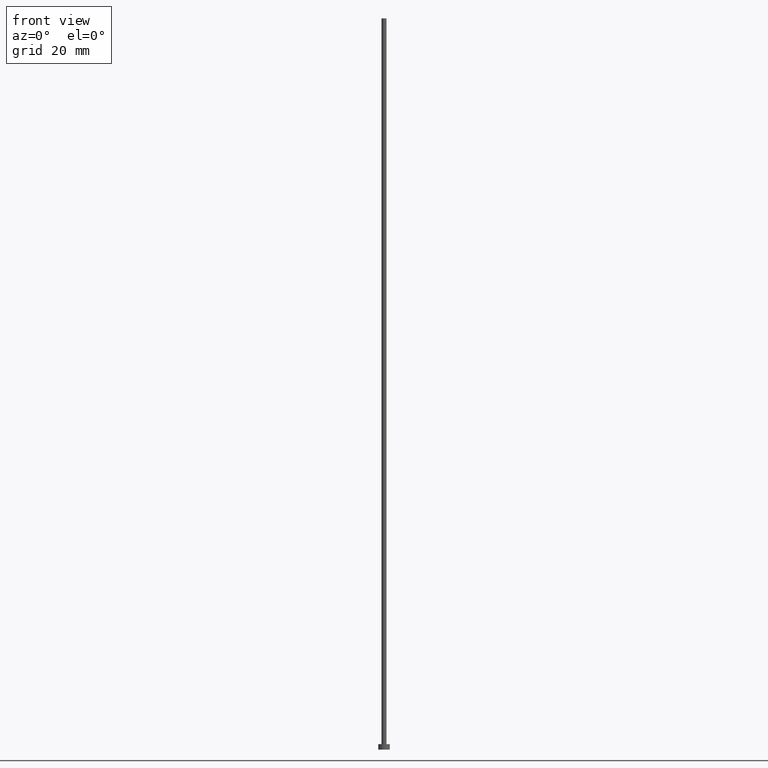
[diagram: clean part render]
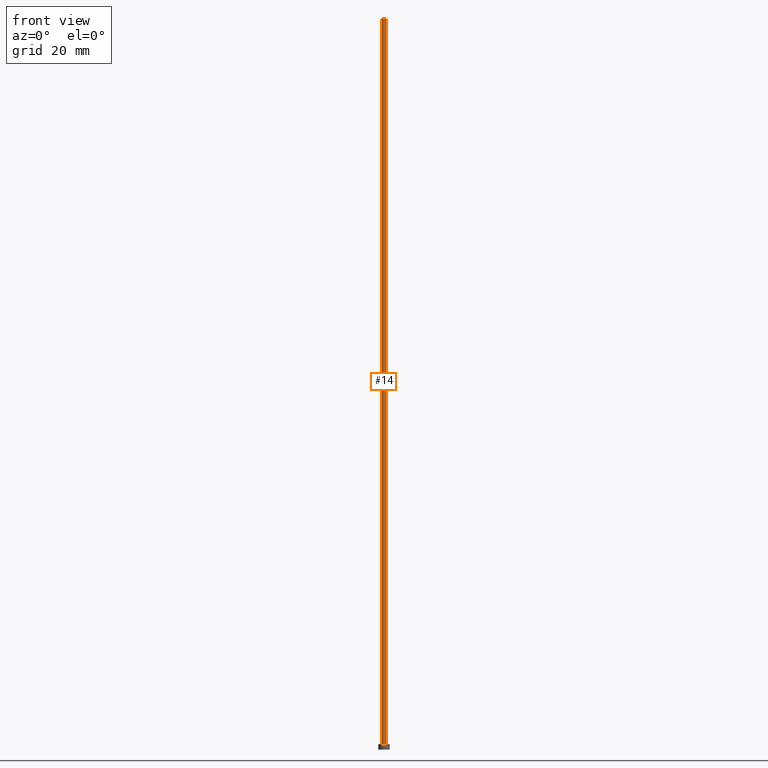
[diagram: same view with one face highlighted and labeled with its STEP entity id]
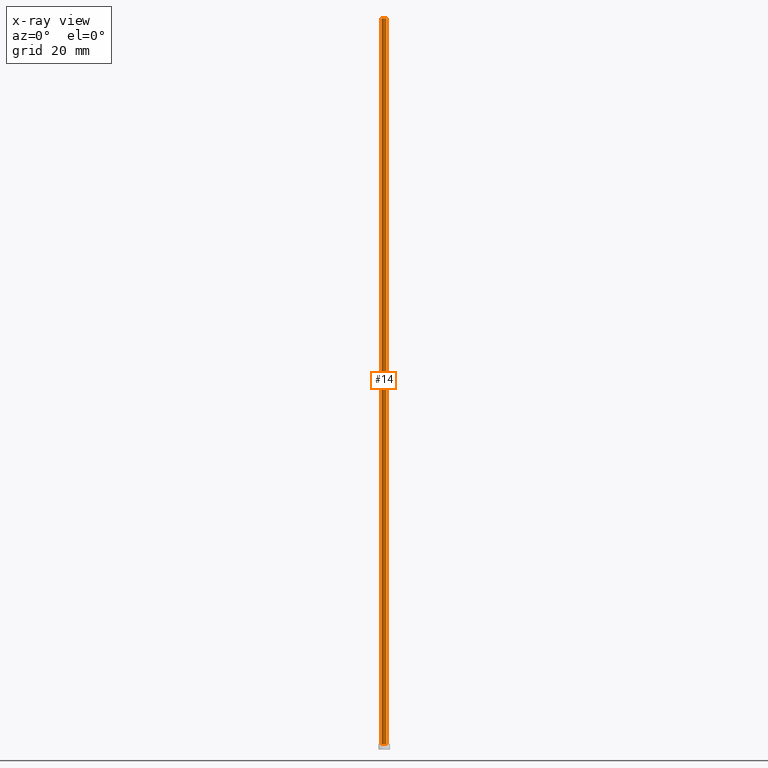
[diagram: x-ray of the same camera — body ghosted, the highlighted face saturated]
A machine part, front view. The second image highlights one B-rep face of the part: STEP entity #14.
The next image is the same camera in x-ray: the body ghosted, the highlighted face saturated — about 0% of this face is hidden behind the body in this view.
In plain terms, the highlighted cylindrical surface (edge-blend (fillet) strip) has radius 0.55 mm, axis along (-0, -0, -1).
Its self-contained STEP definition (entity closure, byte-faithful):
#1 = EDGE_CURVE ( 'NONE', #11, #152, #46, .T. ) ;
#11 = VERTEX_POINT ( 'NONE', #234 ) ;
#14 = ADVANCED_FACE ( 'NONE', ( #199 ), #253, .T. ) ;
#15 = AXIS2_PLACEMENT_3D ( 'NONE', #20, #102, #127 ) ;
#20 = CARTESIAN_POINT ( 'NONE',  ( 0.000000000000000000, 0.000000000000000000, 160.0000000000000284 ) ) ;
#29 = AXIS2_PLACEMENT_3D ( 'NONE', #235, #83, #255 ) ;
#35 = VECTOR ( 'NONE', #196, 1000.000000000000000 ) ;
#38 = DIRECTION ( 'NONE',  ( -0.000000000000000000, -0.000000000000000000, -1.000000000000000000 ) ) ;
#46 = LINE ( 'NONE', #130, #35 ) ;
#56 = EDGE_CURVE ( 'NONE', #60, #124, #208, .T. ) ;
#60 = VERTEX_POINT ( 'NONE', #250 ) ;
#65 = CARTESIAN_POINT ( 'NONE',  ( 0.000000000000000000, 0.000000000000000000, 160.0000000000000284 ) ) ;
#71 = CARTESIAN_POINT ( 'NONE',  ( 0.5500000000000000444, 6.735557395310442516E-17, 1.199999999999999956 ) ) ;
#76 = ORIENTED_EDGE ( 'NONE', *, *, #1, .T. ) ;
#83 = DIRECTION ( 'NONE',  ( 0.000000000000000000, 0.000000000000000000, 1.000000000000000000 ) ) ;
#96 = ORIENTED_EDGE ( 'NONE', *, *, #242, .F. ) ;
#102 = DIRECTION ( 'NONE',  ( 0.000000000000000000, 0.000000000000000000, 1.000000000000000000 ) ) ;
#114 = VECTOR ( 'NONE', #38, 1000.000000000000000 ) ;
#124 = VERTEX_POINT ( 'NONE', #71 ) ;
#127 = DIRECTION ( 'NONE',  ( 1.000000000000000000, 0.000000000000000000, 0.000000000000000000 ) ) ;
#129 = EDGE_LOOP ( 'NONE', ( #166, #96, #76, #213 ) ) ;
#130 = CARTESIAN_POINT ( 'NONE',  ( -0.5500000000000000444, 0.000000000000000000, 160.0000000000000284 ) ) ;
#136 = CIRCLE ( 'NONE', #15, 0.5500000000000000444 ) ;
#149 = AXIS2_PLACEMENT_3D ( 'NONE', #65, #183, #232 ) ;
#152 = VERTEX_POINT ( 'NONE', #162 ) ;
#162 = CARTESIAN_POINT ( 'NONE',  ( -0.5500000000000000444, 0.000000000000000000, 1.199999999999999956 ) ) ;
#166 = ORIENTED_EDGE ( 'NONE', *, *, #56, .F. ) ;
#183 = DIRECTION ( 'NONE',  ( -0.000000000000000000, -0.000000000000000000, -1.000000000000000000 ) ) ;
#188 = EDGE_CURVE ( 'NONE', #152, #124, #251, .T. ) ;
#196 = DIRECTION ( 'NONE',  ( -0.000000000000000000, -0.000000000000000000, -1.000000000000000000 ) ) ;
#199 = FACE_OUTER_BOUND ( 'NONE', #129, .T. ) ;
#208 = LINE ( 'NONE', #227, #114 ) ;
#213 = ORIENTED_EDGE ( 'NONE', *, *, #188, .T. ) ;
#227 = CARTESIAN_POINT ( 'NONE',  ( 0.5500000000000000444, 6.735557395310442516E-17, 160.0000000000000284 ) ) ;
#232 = DIRECTION ( 'NONE',  ( -1.000000000000000000, 0.000000000000000000, 0.000000000000000000 ) ) ;
#234 = CARTESIAN_POINT ( 'NONE',  ( -0.5500000000000000444, 0.000000000000000000, 160.0000000000000284 ) ) ;
#235 = CARTESIAN_POINT ( 'NONE',  ( 0.000000000000000000, 0.000000000000000000, 1.199999999999999956 ) ) ;
#242 = EDGE_CURVE ( 'NONE', #11, #60, #136, .T. ) ;
#250 = CARTESIAN_POINT ( 'NONE',  ( 0.5500000000000000444, 6.735557395310442516E-17, 160.0000000000000284 ) ) ;
#251 = CIRCLE ( 'NONE', #29, 0.5500000000000000444 ) ;
#253 = CYLINDRICAL_SURFACE ( 'NONE', #149, 0.5500000000000000444 ) ;
#255 = DIRECTION ( 'NONE',  ( 1.000000000000000000, 0.000000000000000000, 0.000000000000000000 ) ) ;